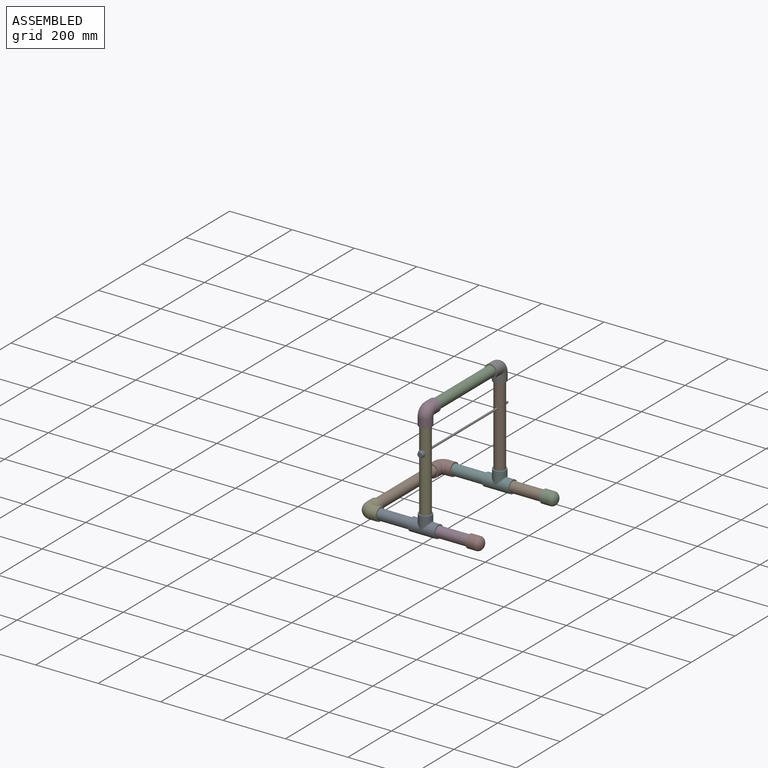
[diagram: assembled view]
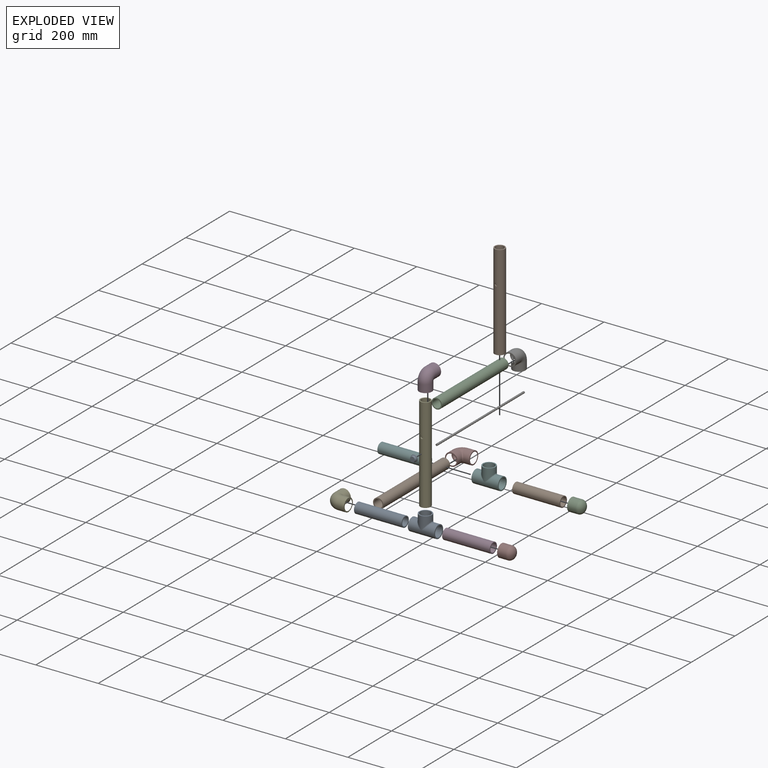
[diagram: exploded view]
GUIDED TOUR — MATED ASSEMBLY WITH SUBASSEMBLIES (Onshape document ecc70650d9e2fe0dbf41c61e, AutoMate assembly ecc70650d9e2fe0dbf41c61e_c4054f734761b2e7a3944f0c_7b533896100cbe7989020245_default)

This assembly has 19 component occurrences arranged in 18 top-level units: 17 individual components plus 1 subassembly (S0). The tour has two levels: first the top level, where each subassembly is treated as one rigid unit; then each subassembly is toured internally in its own section (nesting deeper than one subassembly level is flattened into its subassembly's section).

Components are labeled P0..P18 across the whole record; subassembly units are labeled S0..S0. A mate is a constraint between two units; its type names the relative motion it leaves free:
  FASTENED — locks the two components together rigidly (no relative motion),
  SLIDER — leaves translation along the listed axis free.
Axis/direction vectors are unit vectors and 'through' points are millimeter coordinates, both in the assembly's world frame.

TOP-LEVEL MATES (between units; each subassembly's internal mates are listed in its own section)
  1. FASTENED "Fastened 3": P17 <-> P0, direction (-1.000, 0.000, 0.000) through (169.86, -169.86, 0.00) mm
  2. FASTENED "Fastened 2": P4 <-> P17, direction (1.000, 0.000, 0.000) through (17.46, -169.86, 0.00) mm
  3. FASTENED "Fastened 1": P4 <-> P9, direction (0.000, 1.000, 0.000) through (0.00, -152.40, 0.00) mm
  4. FASTENED "Fastened 14": P18 <-> P13, direction (0.000, 0.000, -1.000) through (187.34, 169.86, 17.48) mm
  5. FASTENED "Fastened 9": P13 <-> P1, direction (1.000, 0.000, 0.000) through (204.81, 169.86, 0.00) mm
  6. FASTENED "Fastened 4": P3 <-> P0, direction (-1.000, 0.000, 0.000) through (204.81, -169.86, 0.00) mm
  7. FASTENED "Fastened 7": P15 <-> P5, direction (1.000, 0.000, 0.000) through (17.46, 169.86, 0.00) mm
  8. SLIDER "Slider 1": P6 <-> P12, axis (0.000, 1.000, 0.000) through (187.34, 5.86, 220.68) mm
  9. FASTENED "Fastened 6": P15 <-> P9, direction (0.000, -1.000, 0.000) through (0.00, 152.40, 0.00) mm
  10. FASTENED "Fastened 5": P3 <-> P7, direction (1.000, 0.000, 0.000) through (357.21, -169.86, 0.00) mm
  11. FASTENED "Fastened 16": P14 <-> P18, direction (0.000, 0.000, 1.000) through (187.34, 169.86, 322.28) mm
  12. FASTENED "Fastened 11": P12 <-> P0, direction (0.000, 0.000, 1.000) through (187.34, -169.86, 17.48) mm
  13. FASTENED "Fastened 15": P2 <-> P11, direction (0.000, 1.000, 0.000) through (187.34, -152.40, 339.74) mm
  14. FASTENED "Fastened 10": P1 <-> P10, direction (1.000, 0.000, 0.000) through (357.21, 169.86, 0.00) mm
  15. FASTENED "Fastened 17": S0 <-> P6, direction (0.000, 1.000, 0.000) through (187.34, -194.17, 220.68) mm
  16. FASTENED "Fastened 8": P13 <-> P5, direction (-1.000, 0.000, 0.000) through (169.86, 169.86, 0.00) mm
  17. FASTENED "Fastened 13": P14 <-> P2, direction (0.000, -1.000, 0.000) through (187.34, 152.40, 339.74) mm
  18. FASTENED "Fastened 12": P11 <-> P12, direction (0.000, 0.000, -1.000) through (187.34, -169.86, 322.28) mm

TOP-LEVEL ASSEMBLY ORDER
  1. P0 — the base component [order heuristic]
  2. P13 — core [order heuristic]
  3. P1 — core [order heuristic]
  4. P17 — core [order heuristic]
  5. P5 — core [order heuristic]
  6. P9 — core [order heuristic]
  7. P3 — core [order heuristic]
  8. P7 — core [order heuristic]
  9. P10 — core [order heuristic]
  10. P4 — core [order heuristic]
  11. P15 — core [order heuristic]
  12. P6 [order verified]
  13. S0 [order verified]
  14. P14 [order verified]
  15. P11 [order verified]
  16. P2 [order verified]
  17. P18 [order verified]
  18. P12 [order verified]
(S0 verified with a relaxed clearance tolerance: the source model stores slight part interference there.)
Order-tag legend:
  [order verified] — this step's position reverses a verified removal order: the component was checked to insert without passing through the ones already placed.
  [order heuristic] — the first 11 components form the assembly's core: parts whose collision-free extraction could not be verified, listed in mate-graph order.

Of the 19 component occurrences, 9 carry the full construction recipe — the FeatureScript program that regenerates the part's solid from scratch; the rest are supplied as boundary geometry only. Each toured unit is shown spotlighted twice — assembled, then exploded with a leader line back to its socket (green = recipe-attached component, orange = geometry-only, blue = subassembly unit; the rest desaturated gray).
NOTE — this tour is split across 2 documents so each fits a 32k-token context. This is document 1: the component sections continue in the remaining 1 document, each repeating the header above.
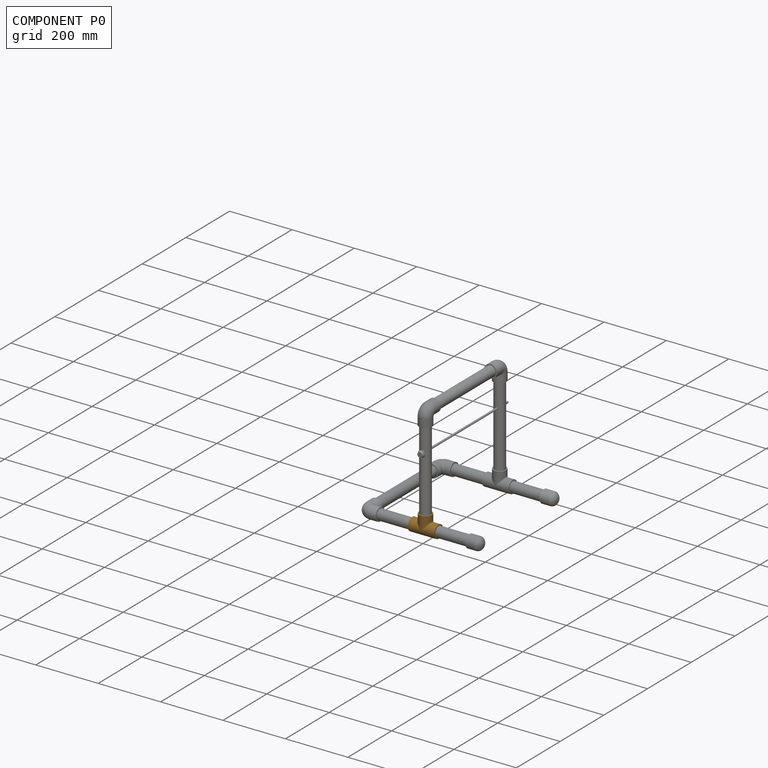
[diagram: component P0 — assembled]
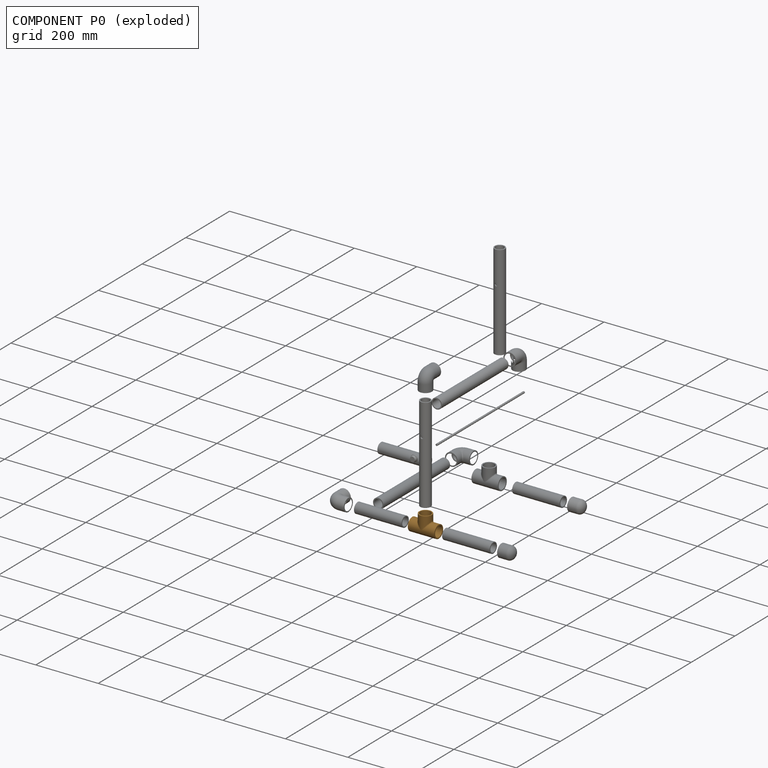
[diagram: component P0 — exploded]
COMPONENT P0 — geometry summary (no construction recipe available for this part):
  bounding box: 85.0 x 62.8 x 40.7 mm
  B-rep topology: 1 solid, 15 faces, 62 edges
  volume: 54324 mm^3 (25% of its bounding box)
Held by: FASTENED mate "Fastened 3" to P17; FASTENED mate "Fastened 4" to P3; FASTENED mate "Fastened 11" to P12.
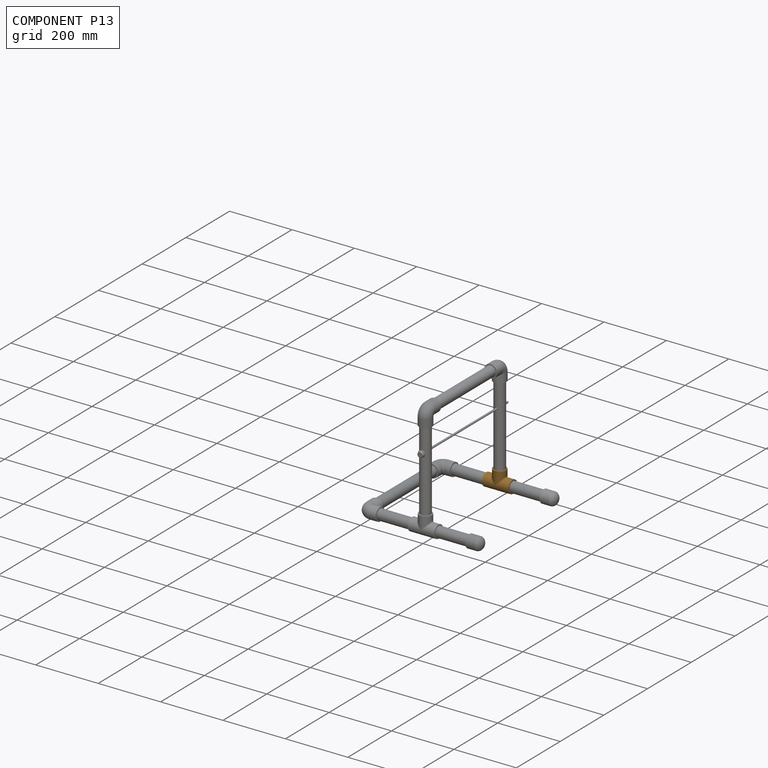
[diagram: component P13 — assembled]
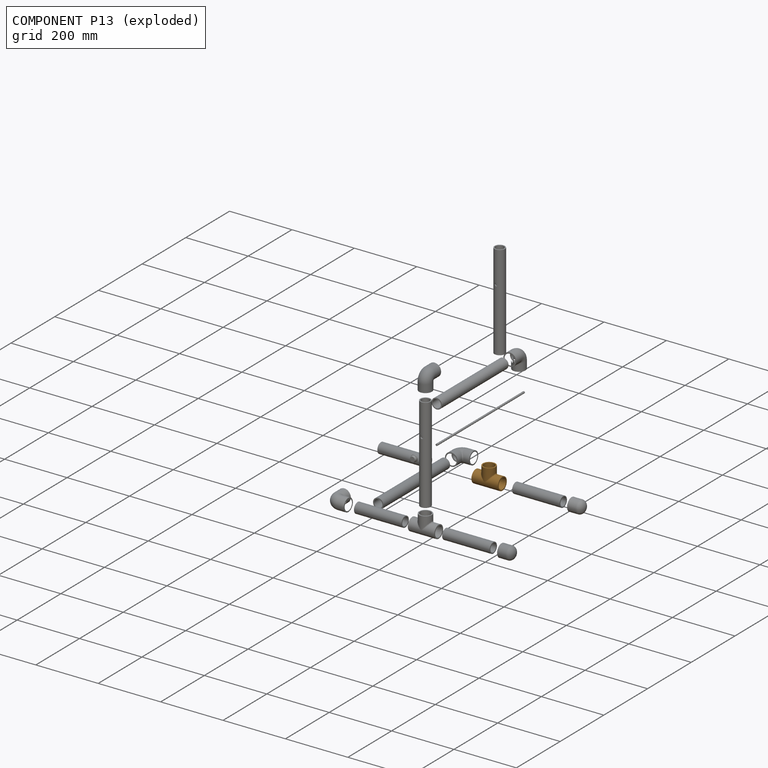
[diagram: component P13 — exploded]
COMPONENT P13 — geometry summary (no construction recipe available for this part):
  bounding box: 85.0 x 62.8 x 40.7 mm
  B-rep topology: 1 solid, 15 faces, 62 edges
  volume: 54324 mm^3 (25% of its bounding box)
Held by: FASTENED mate "Fastened 14" to P18; FASTENED mate "Fastened 9" to P1; FASTENED mate "Fastened 8" to P5.
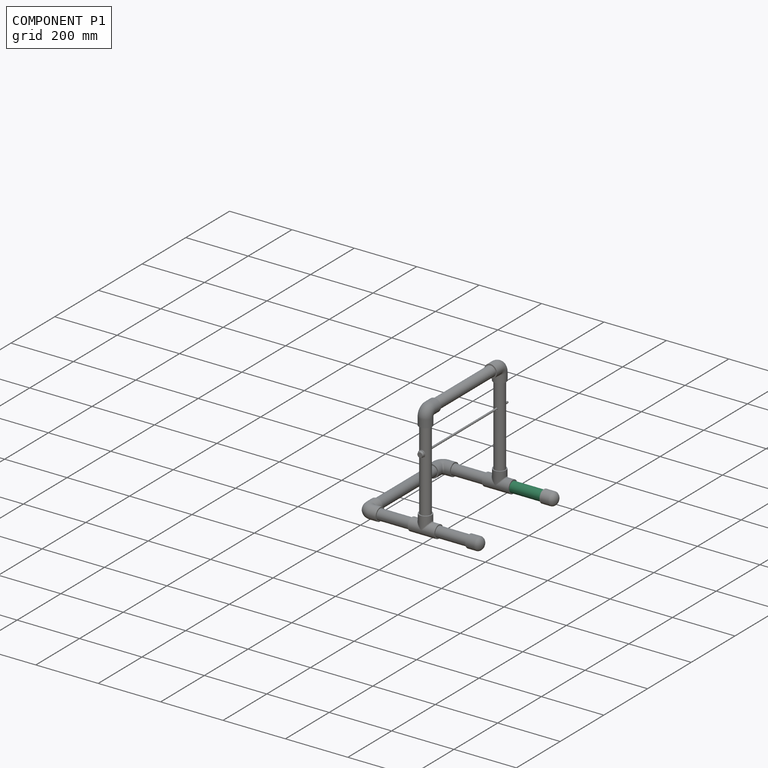
[diagram: component P1 — assembled]
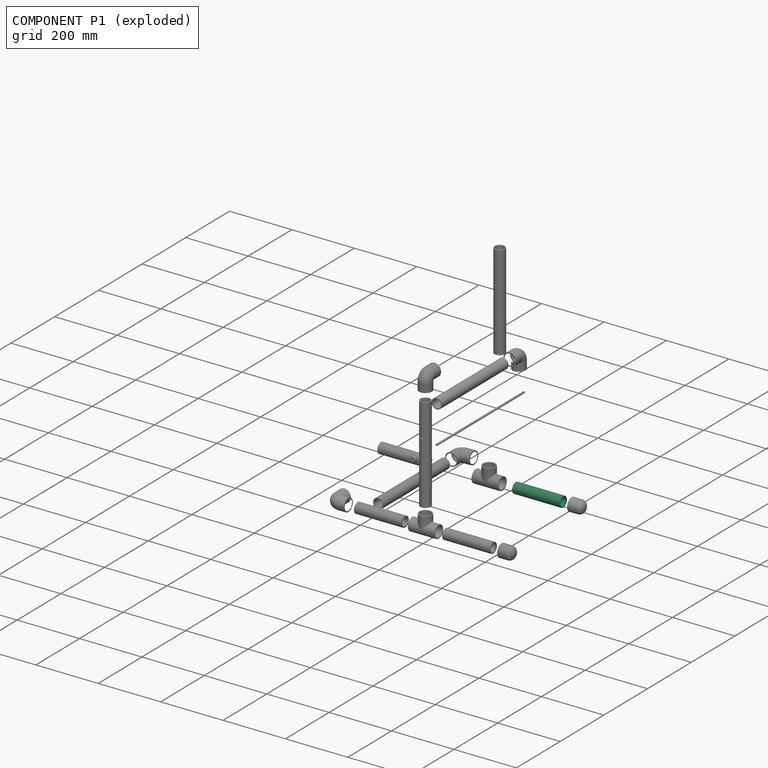
[diagram: component P1 — exploded]
COMPONENT P1 — recipe-attached (CADFS 00862328, mesh-verified: the recipe's output STEP matches this component's geometry to below the mesh-comparison resolution (tessellation chordal tolerance ~0.239 mm)).
Held by: FASTENED mate "Fastened 9" to P13; FASTENED mate "Fastened 10" to P10.
Construction recipe (FeatureScript — the CAD program that rebuilds this solid; sketch coordinates are in the units given by the * unit suffixes, e.g. mm):

FeatureScript 1511;
import(path : "onshape/std/geometry.fs", version : "1511.0");
import(path : "onshape/std/common.fs", version : "1511.0");
const mm = millimeter;
const VERTEX = EntityType.VERTEX;
const EDGE = EntityType.EDGE;
const FACE = EntityType.FACE;
const BODY = EntityType.BODY;
function v(x, y){return vector(x, y);}
function OD(order){return orderDisambiguation(order);}
function OSD(set){return originalSetDisambiguation(set);}
function TD(topology){return topologyDisambiguation(topology);}
function TDD(query){return trueDependencyDisambiguation(query);}
function sQuery(a, b, c) {return sketchEntityQuery(a, b, c);}

annotation { "Feature Type Name" : "Feature", "Feature Type Description" : "" }
export const myFeature = defineFeature(function(context is Context, id is Id, definition is map)
    precondition{}
    {
        {
            var Q0;
            Q0=qCreatedBy(makeId("Front.planeOp"),FACE);
            var sketch = newSketch(context, id + "F0", { "sketchPlane" : qUnion([Q0])});
            skCircle(sketch, "E0", {"center": v(0, 0) * mm, "radius": 16.7 * mm});
            skCircle(sketch, "E1", {"center": v(0, 0) * mm, "radius": 13.32 * mm});
            skSolve(sketch);
        }
        {
            var Q0;
            Q0=makeQuery(id+"F0.imprint","IMPRINT",FACE,{"disambiguationData":[TD([[makeQuery(id+"F0.imprint","IMPRINT",EDGE,{"derivedFrom":sQuery(id+"F0.wireOp",EDGE,"E0")}),1.0]])]});
            extrude(context, id + "F1", {"entities" : qUnion([Q0]), "endBound" : BoundingType.SYMMETRIC, "depth" : 152.4 * mm, "offsetDistance" : 25.4 * mm});
        }
    });
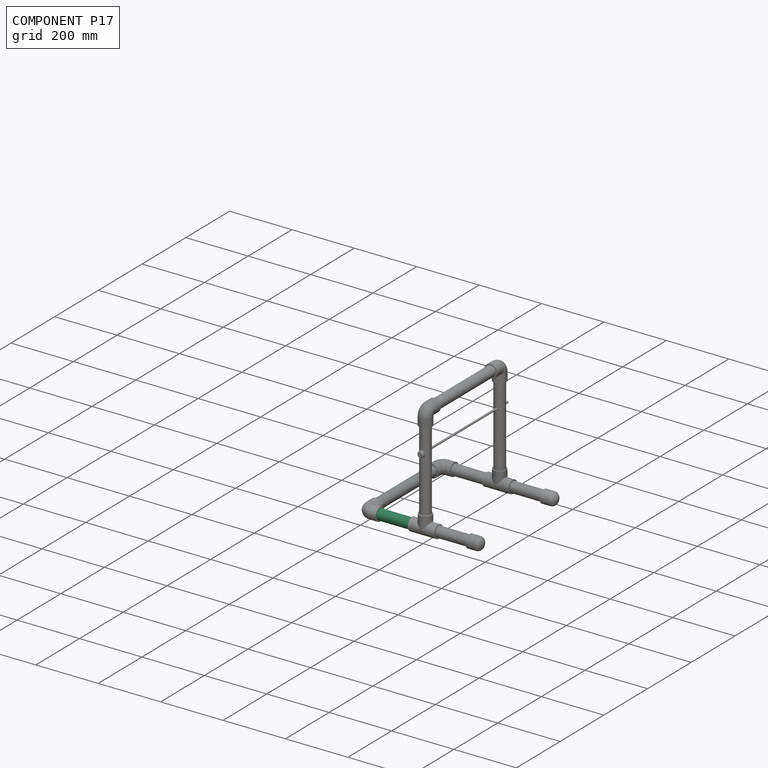
[diagram: component P17 — assembled]
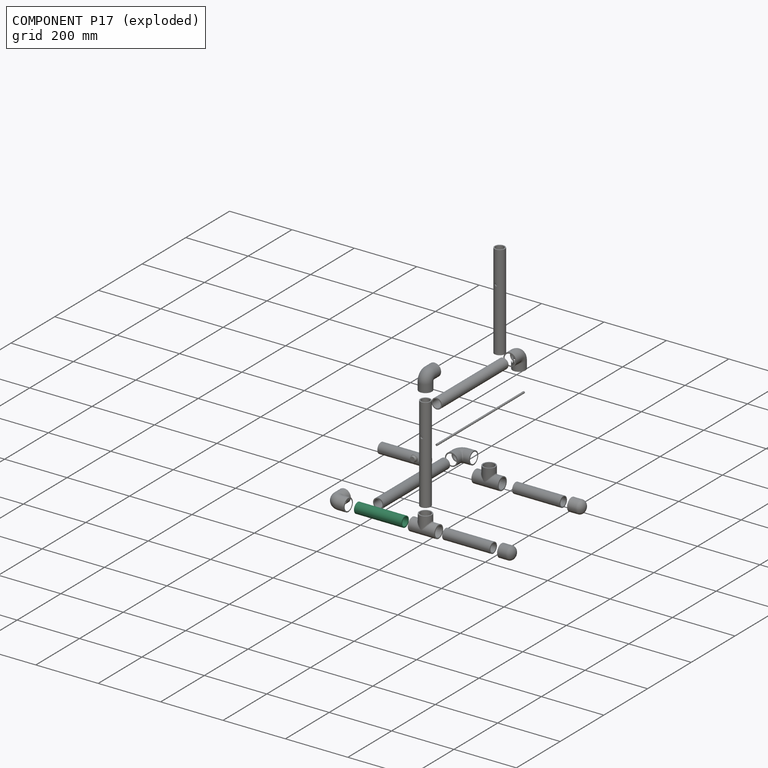
[diagram: component P17 — exploded]
COMPONENT P17 — same part as P1 (CADFS 00862328); its construction recipe is shown at P1.
Held by: FASTENED mate "Fastened 3" to P0; FASTENED mate "Fastened 2" to P4.
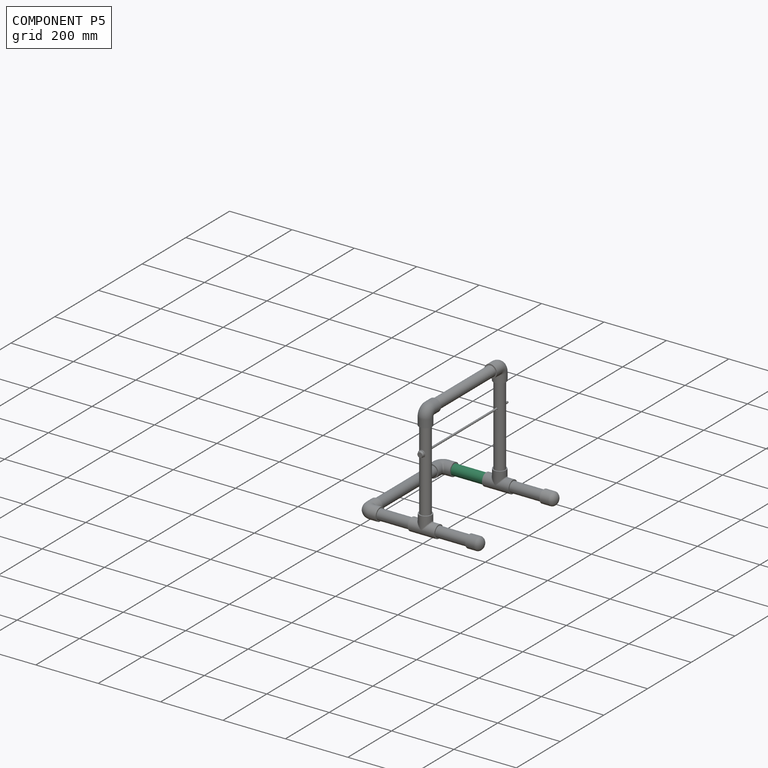
[diagram: component P5 — assembled]
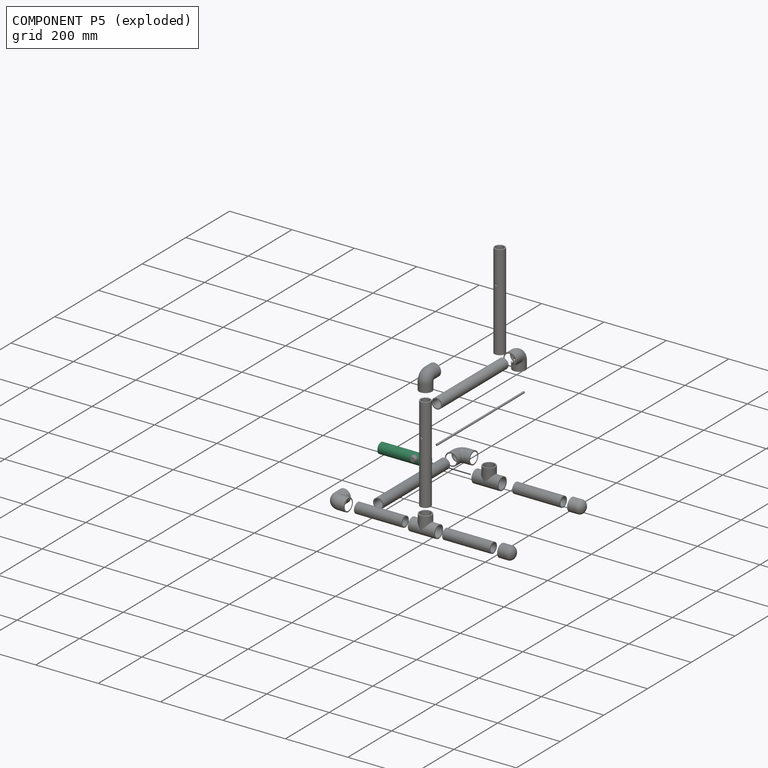
[diagram: component P5 — exploded]
COMPONENT P5 — same part as P1 (CADFS 00862328); its construction recipe is shown at P1.
Held by: FASTENED mate "Fastened 7" to P15; FASTENED mate "Fastened 8" to P13.
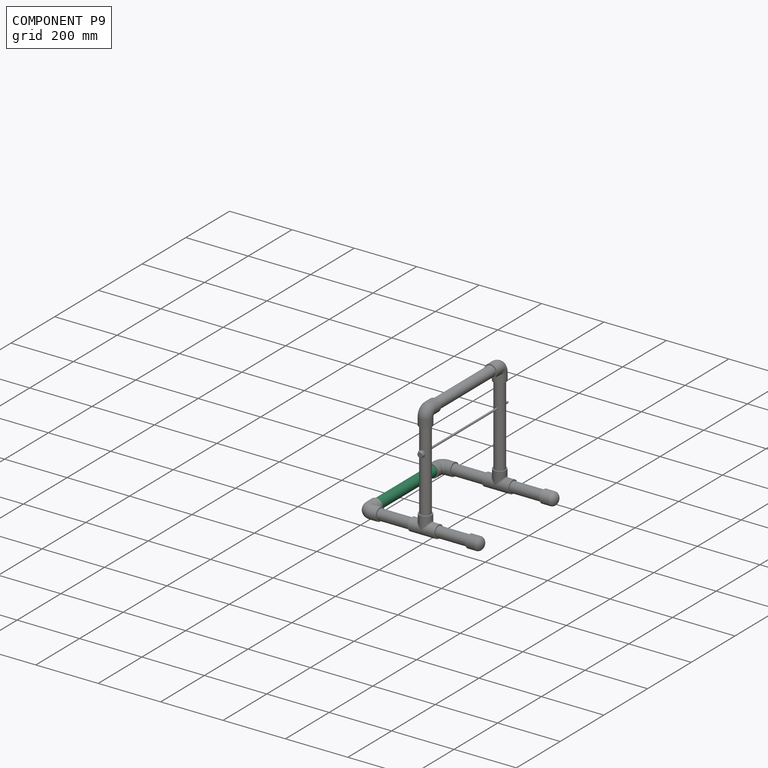
[diagram: component P9 — assembled]
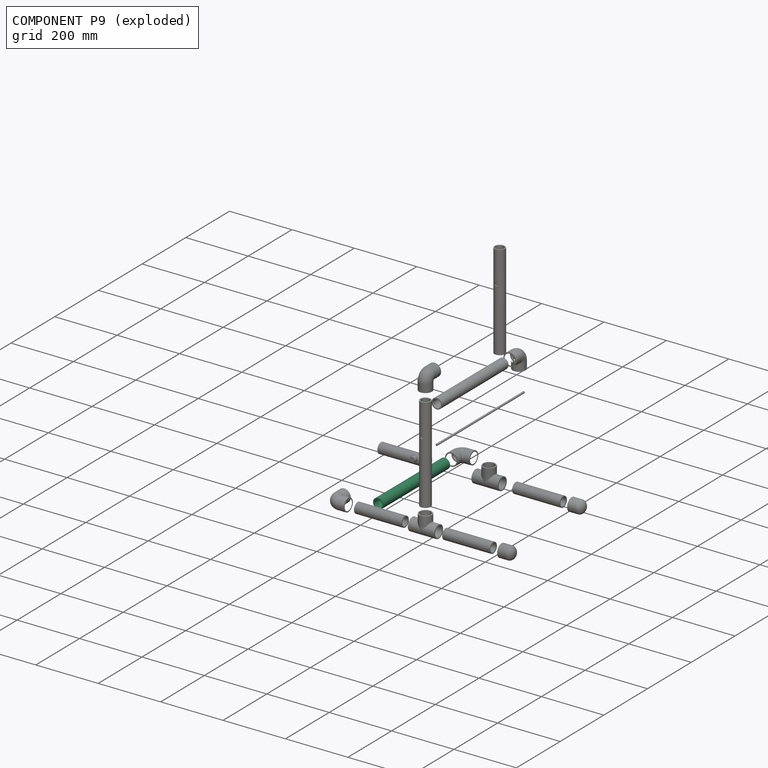
[diagram: component P9 — exploded]
COMPONENT P9 — same part as P2 (CADFS 00862326); its construction recipe is shown at P2.
Held by: FASTENED mate "Fastened 1" to P4; FASTENED mate "Fastened 6" to P15.
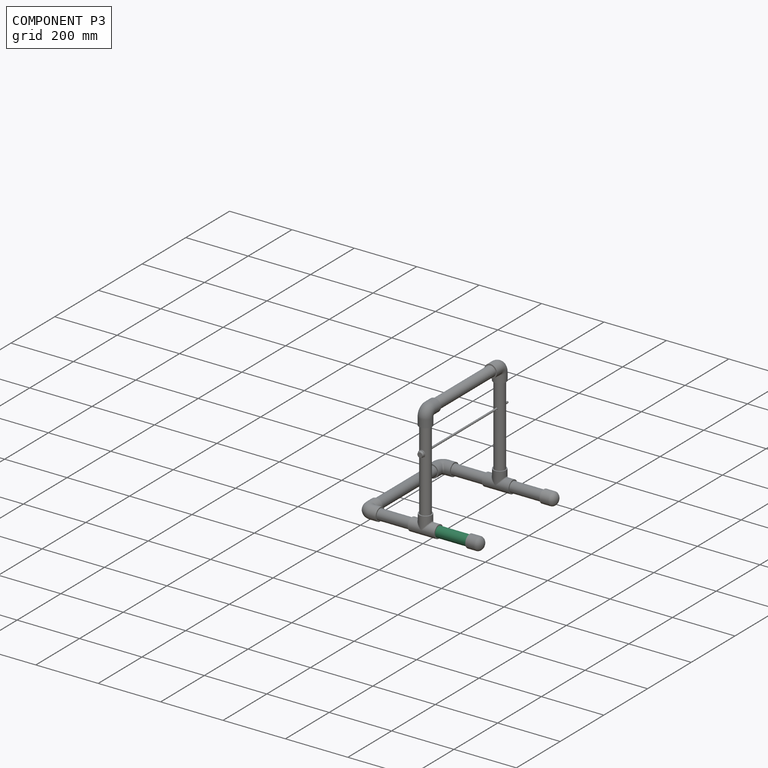
[diagram: component P3 — assembled]
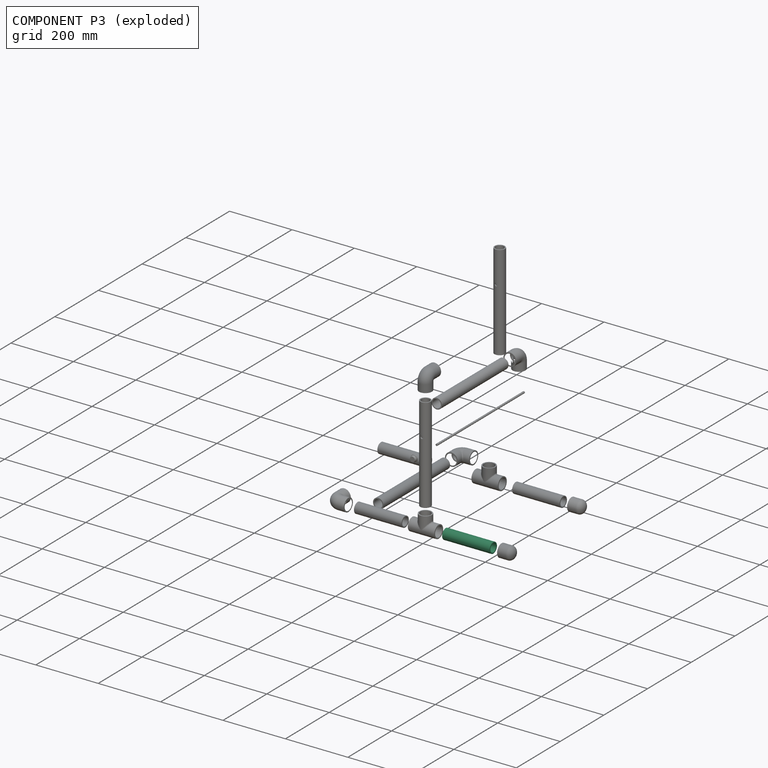
[diagram: component P3 — exploded]
COMPONENT P3 — same part as P1 (CADFS 00862328); its construction recipe is shown at P1.
Held by: FASTENED mate "Fastened 4" to P0; FASTENED mate "Fastened 5" to P7.
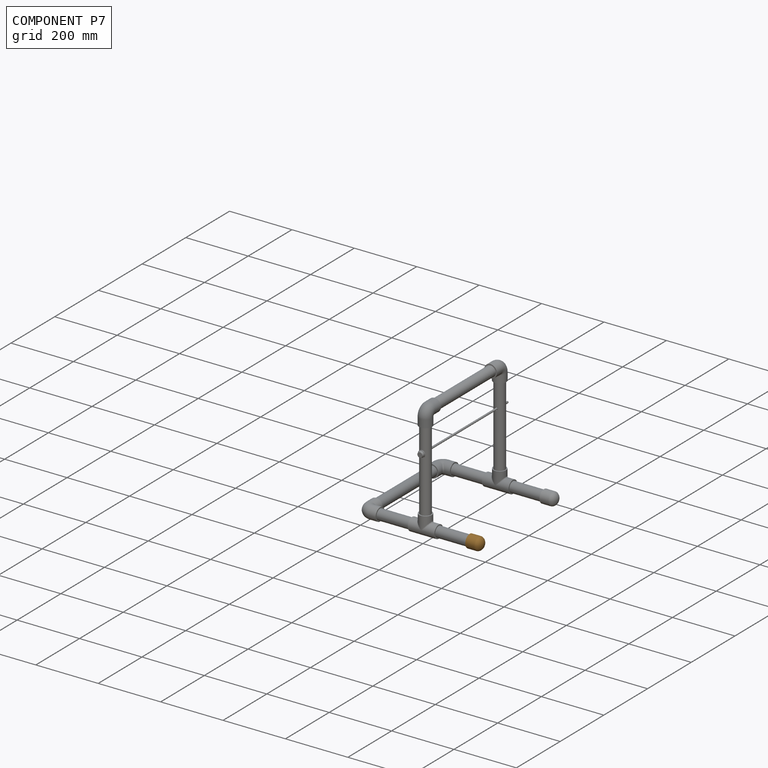
[diagram: component P7 — assembled]
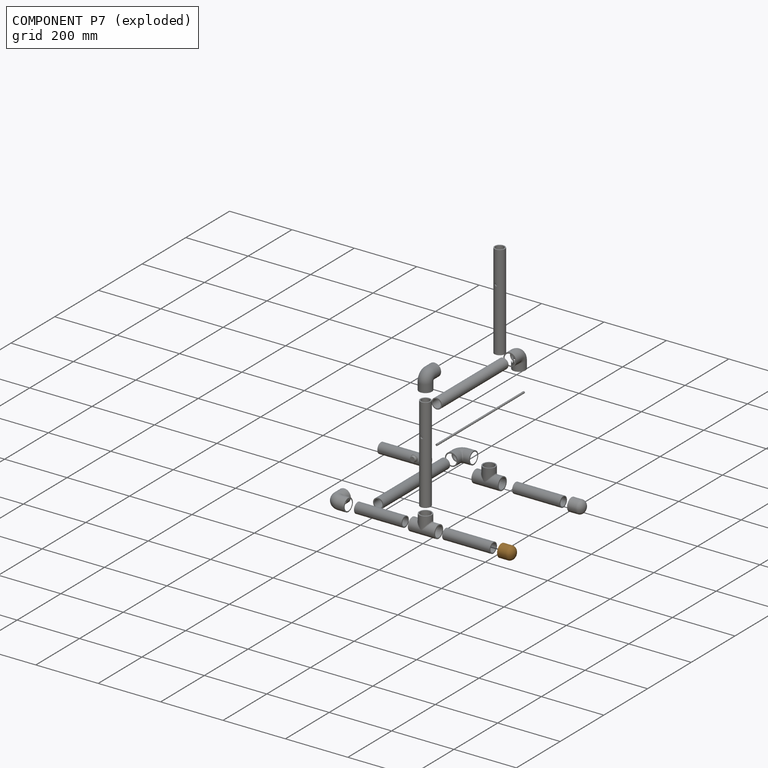
[diagram: component P7 — exploded]
COMPONENT P7 — geometry summary (no construction recipe available for this part):
  bounding box: 44.0 x 41.2 x 41.2 mm
  B-rep topology: 1 solid, 5 faces, 20 edges
  volume: 19866 mm^3 (27% of its bounding box)
  symmetry: revolution-symmetric about the x axis through its bounding-box center; mirror-symmetric across its y mid-plane, z mid-plane
Held by: FASTENED mate "Fastened 5" to P3.
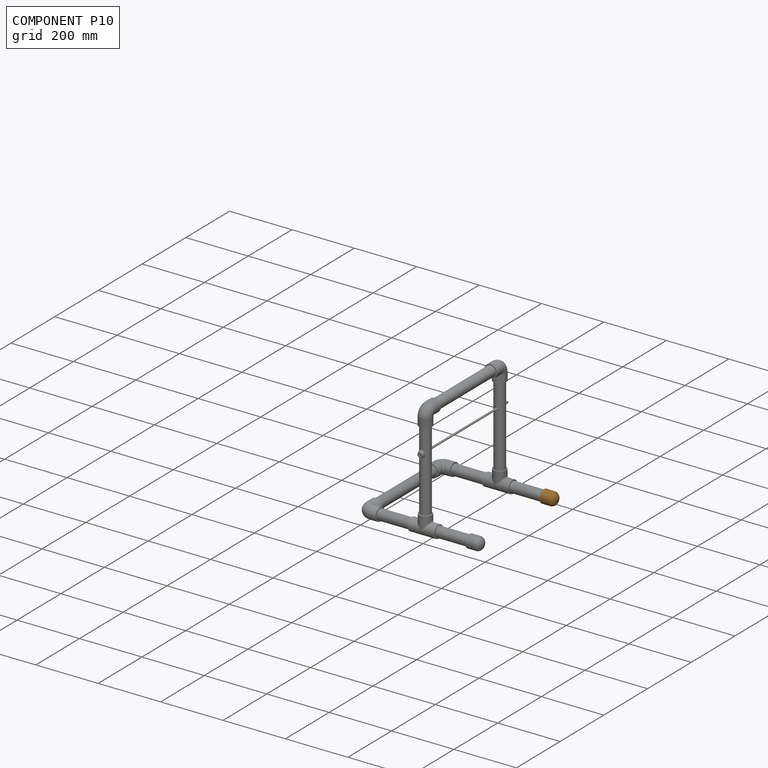
[diagram: component P10 — assembled]
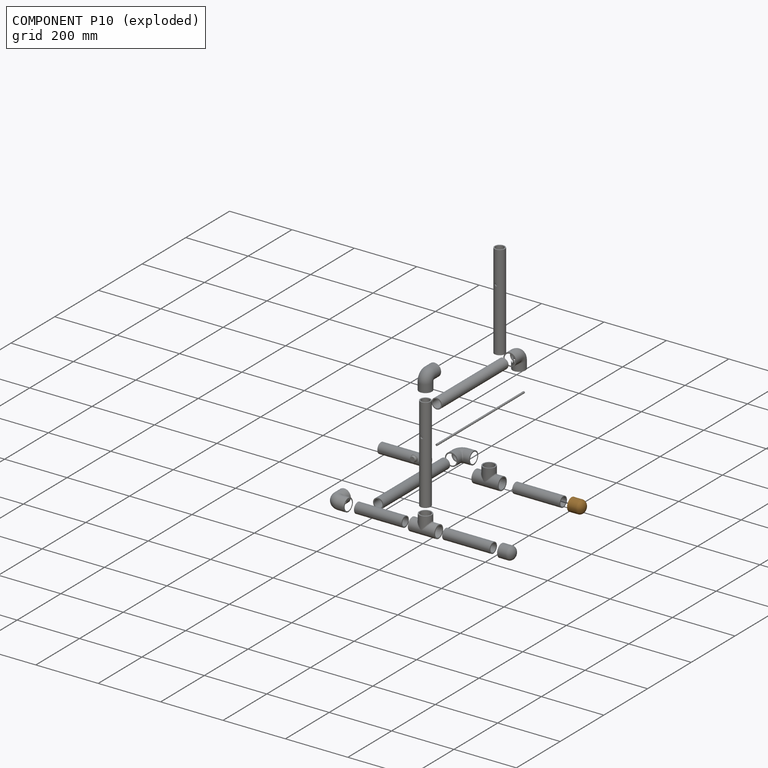
[diagram: component P10 — exploded]
COMPONENT P10 — geometry summary (no construction recipe available for this part):
  bounding box: 44.0 x 41.2 x 41.2 mm
  B-rep topology: 1 solid, 5 faces, 20 edges
  volume: 19866 mm^3 (27% of its bounding box)
  symmetry: revolution-symmetric about the x axis through its bounding-box center; mirror-symmetric across its y mid-plane, z mid-plane
Held by: FASTENED mate "Fastened 10" to P1.
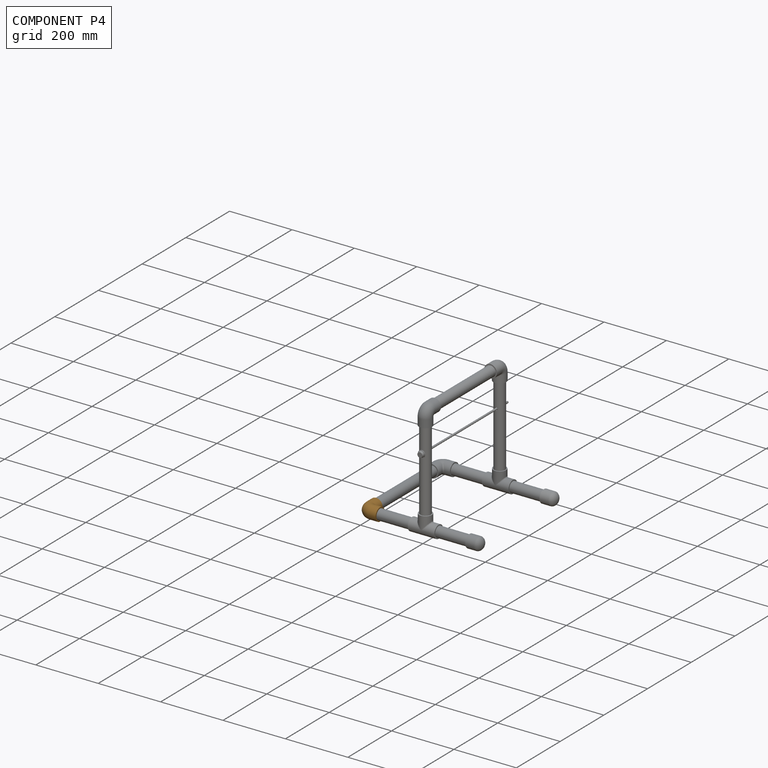
[diagram: component P4 — assembled]
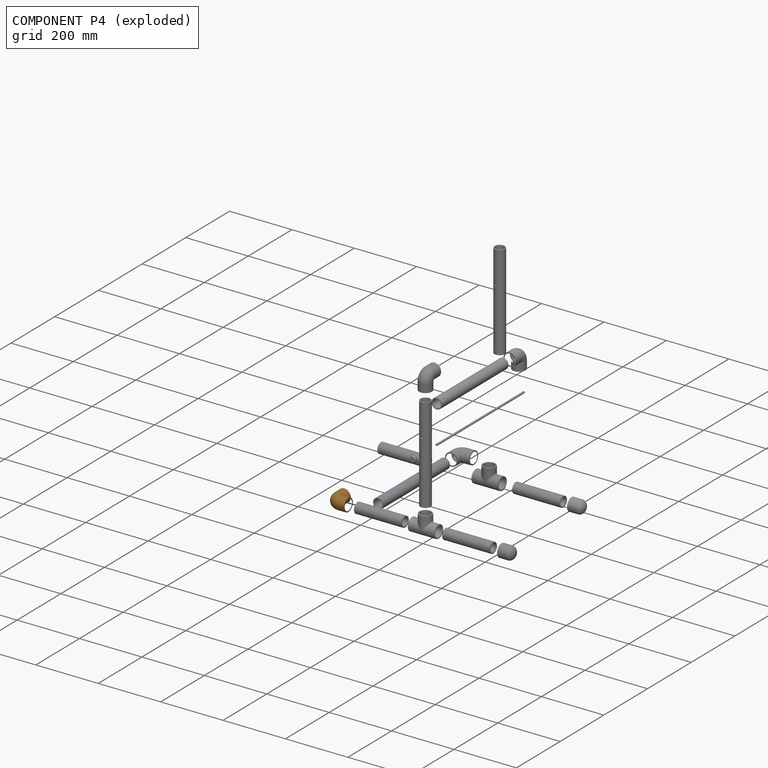
[diagram: component P4 — exploded]
COMPONENT P4 — geometry summary (no construction recipe available for this part):
  bounding box: 62.7 x 62.7 x 41.3 mm
  B-rep topology: 1 solid, 11 faces, 44 edges
  volume: 101332 mm^3 (62% of its bounding box)
  symmetry: mirror-symmetric across its y mid-plane
Held by: FASTENED mate "Fastened 2" to P17; FASTENED mate "Fastened 1" to P9.
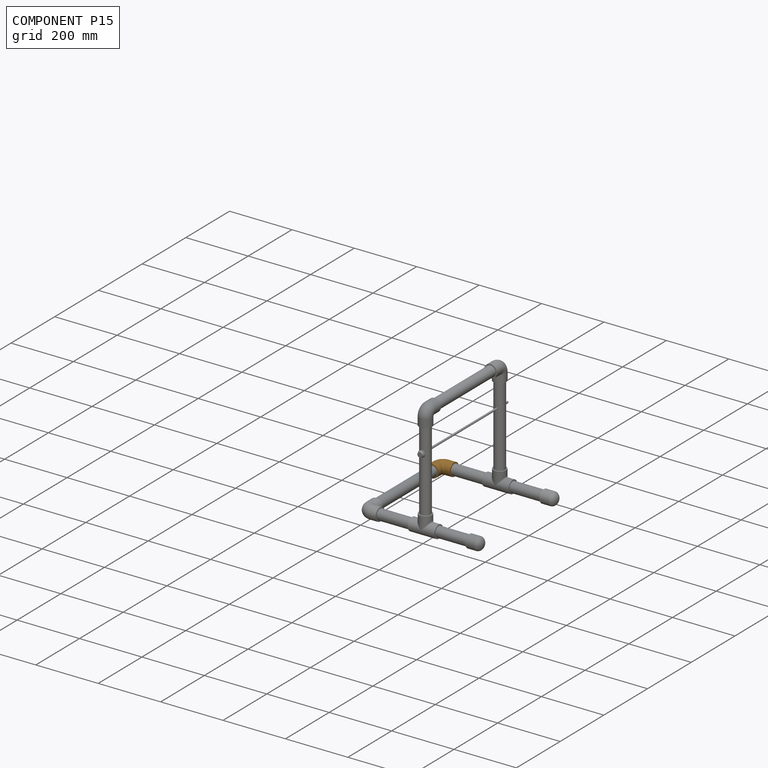
[diagram: component P15 — assembled]
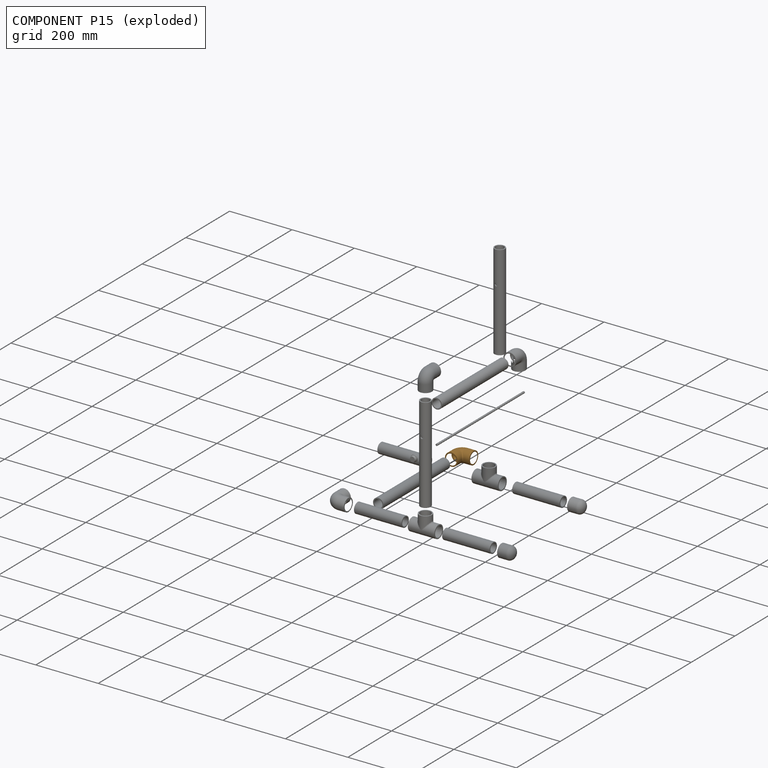
[diagram: component P15 — exploded]
COMPONENT P15 — geometry summary (no construction recipe available for this part):
  bounding box: 62.7 x 62.7 x 41.3 mm
  B-rep topology: 1 solid, 11 faces, 44 edges
  volume: 101332 mm^3 (62% of its bounding box)
  symmetry: mirror-symmetric across its y mid-plane
Held by: FASTENED mate "Fastened 7" to P5; FASTENED mate "Fastened 6" to P9.
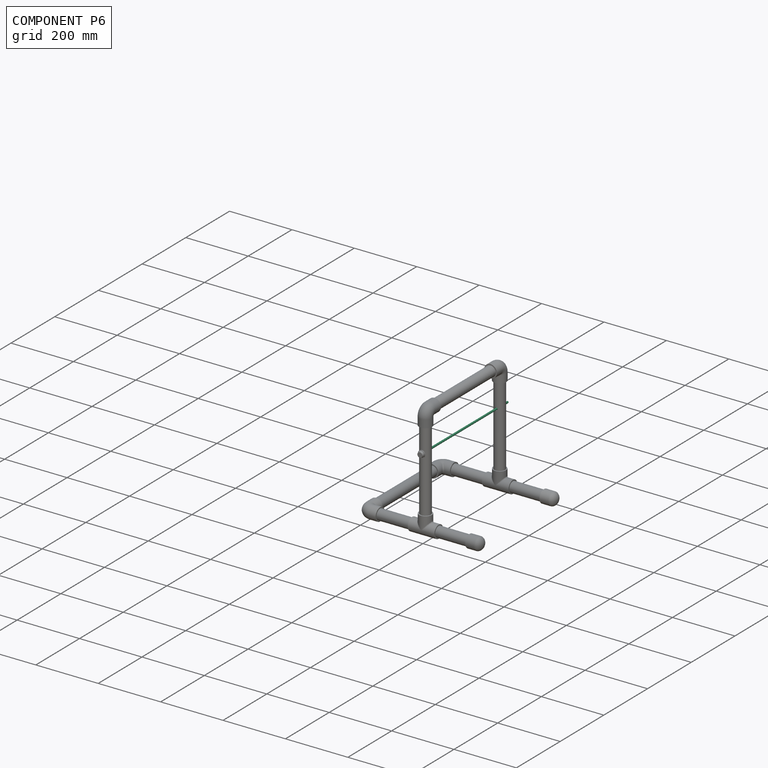
[diagram: component P6 — assembled]
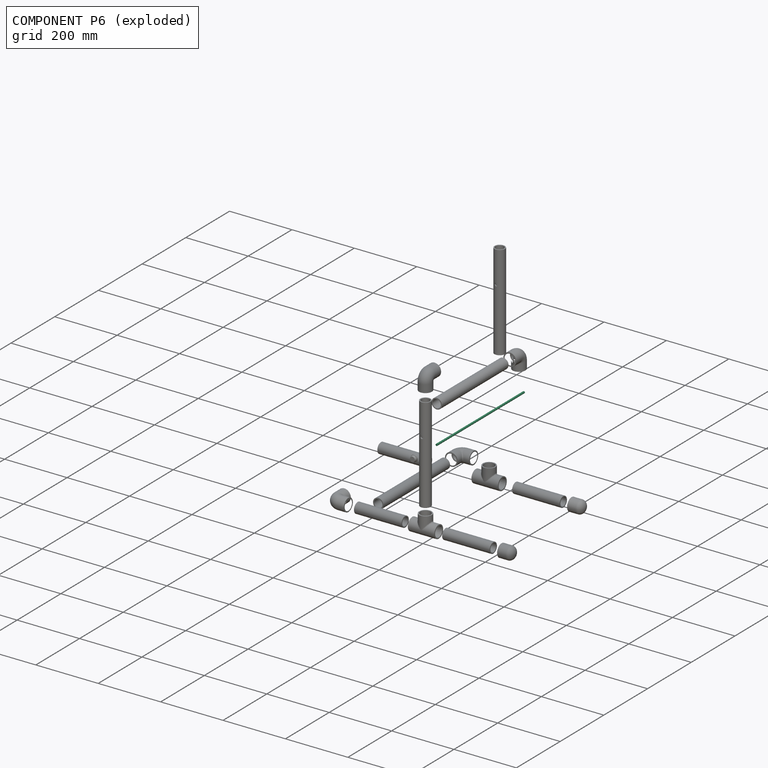
[diagram: component P6 — exploded]
COMPONENT P6 — recipe-attached (CADFS 00862329, mesh-verified: the recipe's output STEP matches this component's geometry to below the mesh-comparison resolution (tessellation chordal tolerance ~0.6 mm)).
Held by: SLIDER mate "Slider 1" to P12; FASTENED mate "Fastened 17" to P8.
Construction recipe (FeatureScript — the CAD program that rebuilds this solid; sketch coordinates are in the units given by the * unit suffixes, e.g. mm):

FeatureScript 1511;
import(path : "onshape/std/geometry.fs", version : "1511.0");
import(path : "onshape/std/common.fs", version : "1511.0");
const mm = millimeter;
const VERTEX = EntityType.VERTEX;
const EDGE = EntityType.EDGE;
const FACE = EntityType.FACE;
const BODY = EntityType.BODY;
function v(x, y){return vector(x, y);}
function OD(order){return orderDisambiguation(order);}
function OSD(set){return originalSetDisambiguation(set);}
function TD(topology){return topologyDisambiguation(topology);}
function TDD(query){return trueDependencyDisambiguation(query);}
function sQuery(a, b, c) {return sketchEntityQuery(a, b, c);}

annotation { "Feature Type Name" : "Feature", "Feature Type Description" : "" }
export const myFeature = defineFeature(function(context is Context, id is Id, definition is map)
    precondition{}
    {
        {
            var Q0;
            Q0=qCreatedBy(makeId("Right.planeOp"),FACE);
            var sketch = newSketch(context, id + "F0", { "sketchPlane" : qUnion([Q0])});
            skCircle(sketch, "E0", {"center": v(0, 0) * mm, "radius": 3.18 * mm});
            skSolve(sketch);
        }
        {
            var Q0;
            Q0 = qSketchRegion(id + "F0", true);
            extrude(context, id + "F1", {"entities" : qUnion([Q0]), "endBound" : BoundingType.SYMMETRIC, "depth" : 400.05 * mm, "offsetDistance" : 25.4 * mm});
        }
        {
            var Q0;
            Q0=qCreatedBy(makeId("Top.planeOp"),FACE);
            var sketch = newSketch(context, id + "F2", { "sketchPlane" : qUnion([Q0])});
            skCircle(sketch, "E1", {"center": v(-195.26, 0) * mm, "radius": 1.39 * mm});
            skSolve(sketch);
        }
        {
            var Q0;
            Q0 = qSketchRegion(id + "F2", true);
            extrude(context, id + "F3", {"entities" : qUnion([Q0]), "operationType" : NewBodyOperationType.REMOVE, "endBound" : BoundingType.UP_TO_NEXT, "oppositeDirection" : true, "depth" : 25.4 * mm, "offsetDistance" : 25.4 * mm, "hasSecondDirection" : true, "secondDirectionBound" : SecondDirectionBoundingType.UP_TO_NEXT, "secondDirectionOppositeDirection" : false, "secondDirectionDepth" : 25.4 * mm});
        }
    });
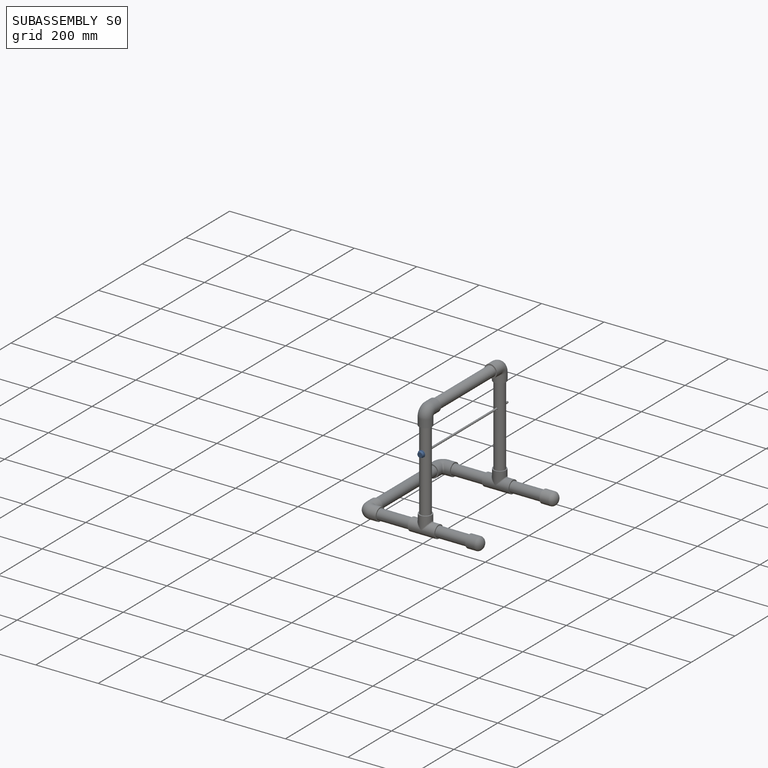
[diagram: subassembly S0 — assembled]
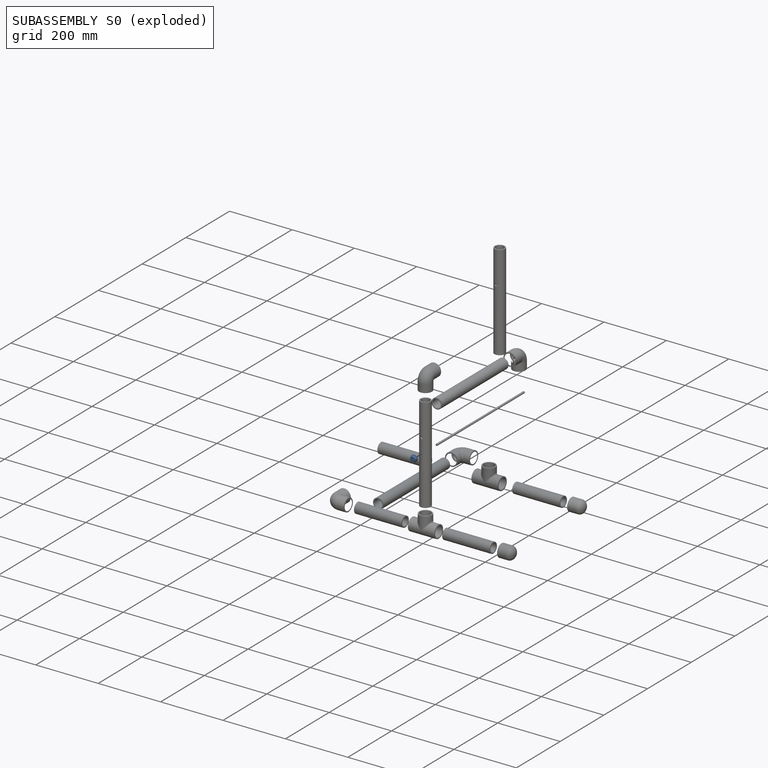
[diagram: subassembly S0 — exploded]
SUBASSEMBLY S0 — 2 components (P8, P16), of which 0 recipe-attached; toured below.
Held by: FASTENED mate "Fastened 17" to P6.
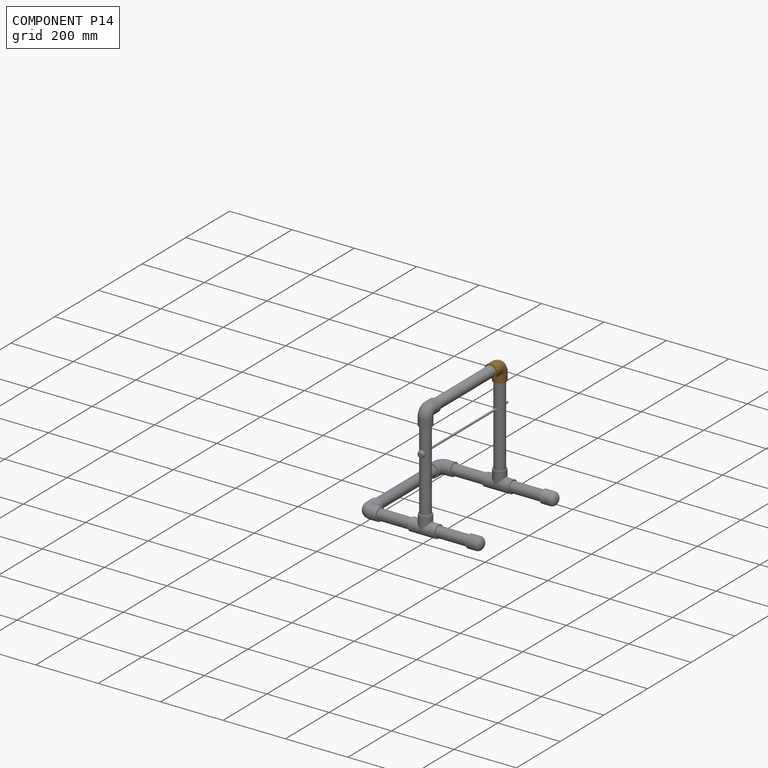
[diagram: component P14 — assembled]
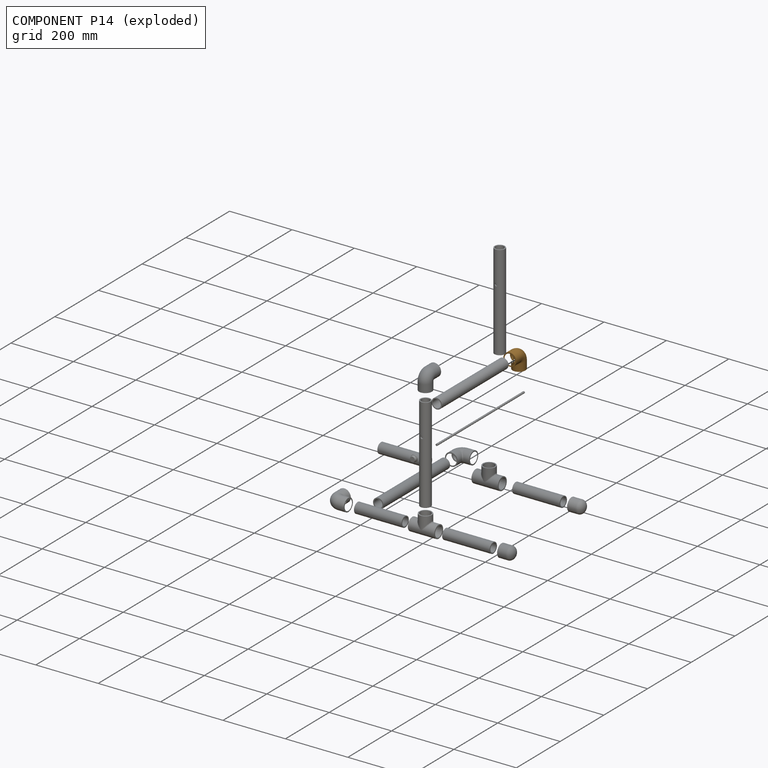
[diagram: component P14 — exploded]
COMPONENT P14 — geometry summary (no construction recipe available for this part):
  bounding box: 62.7 x 62.7 x 41.3 mm
  B-rep topology: 1 solid, 11 faces, 44 edges
  volume: 101332 mm^3 (62% of its bounding box)
  symmetry: mirror-symmetric across its y mid-plane
Held by: FASTENED mate "Fastened 16" to P18; FASTENED mate "Fastened 13" to P2.
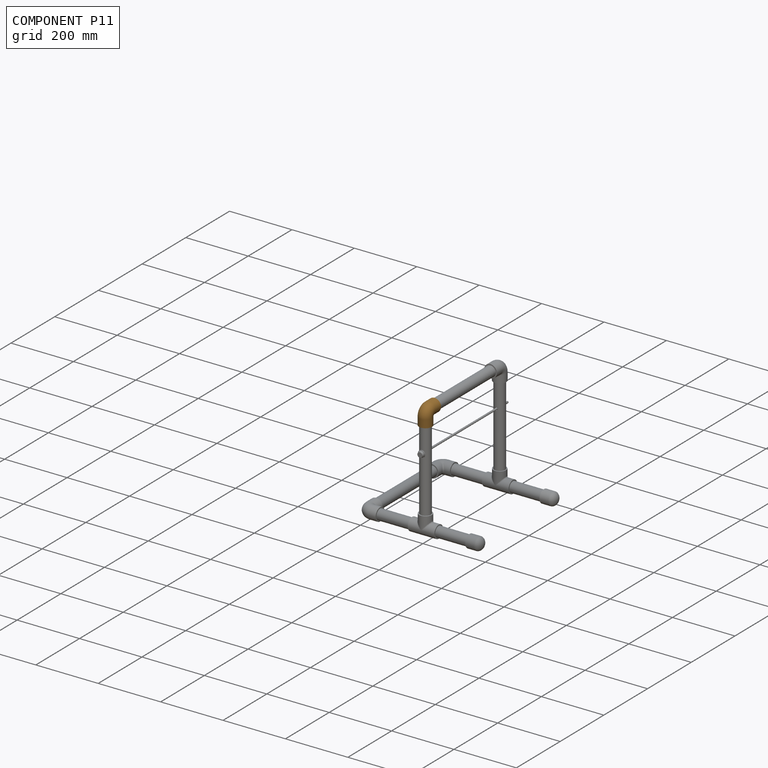
[diagram: component P11 — assembled]
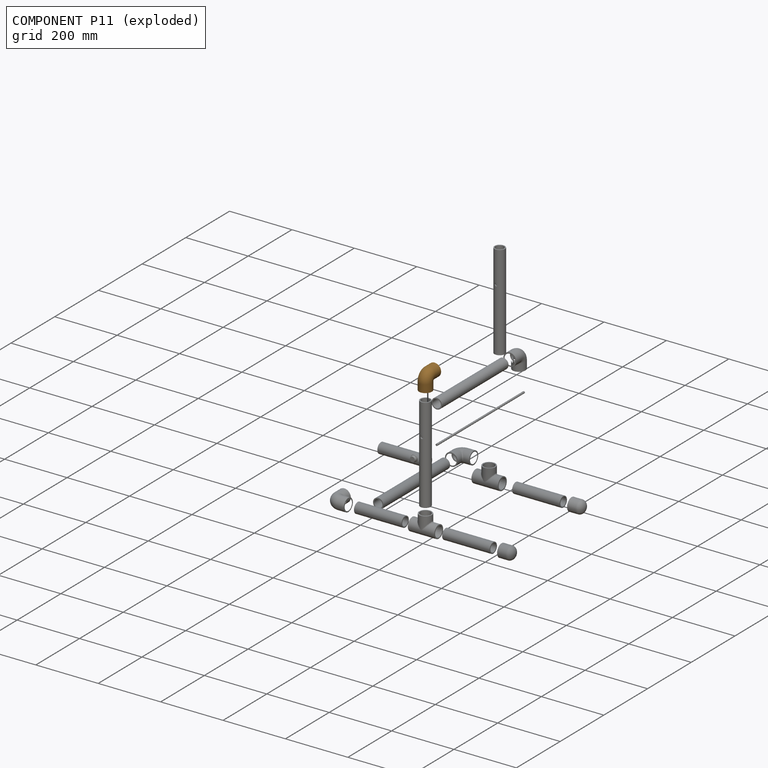
[diagram: component P11 — exploded]
COMPONENT P11 — geometry summary (no construction recipe available for this part):
  bounding box: 62.7 x 62.7 x 41.3 mm
  B-rep topology: 1 solid, 11 faces, 44 edges
  volume: 101332 mm^3 (62% of its bounding box)
  symmetry: mirror-symmetric across its y mid-plane
Held by: FASTENED mate "Fastened 15" to P2; FASTENED mate "Fastened 12" to P12.
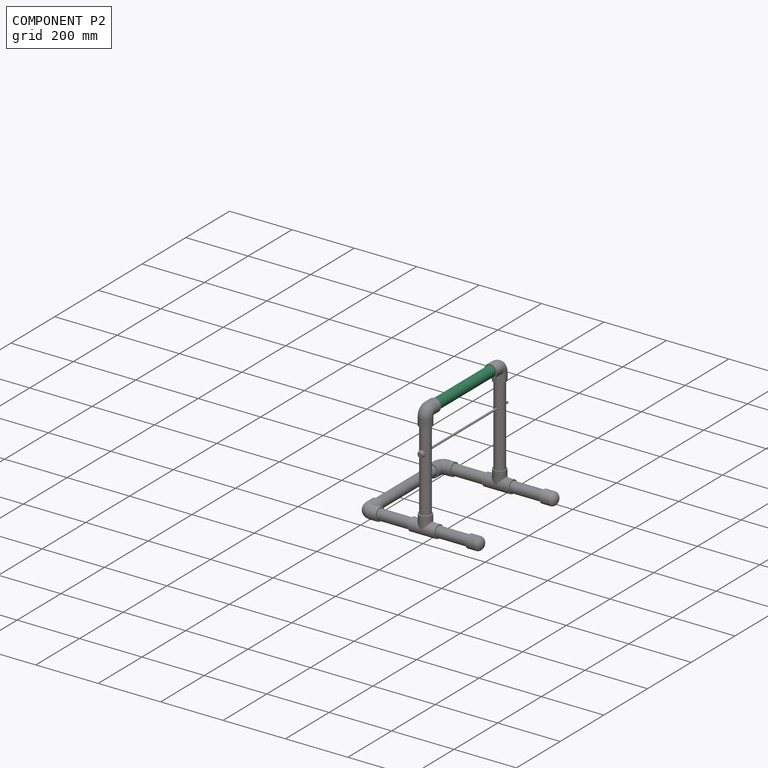
[diagram: component P2 — assembled]
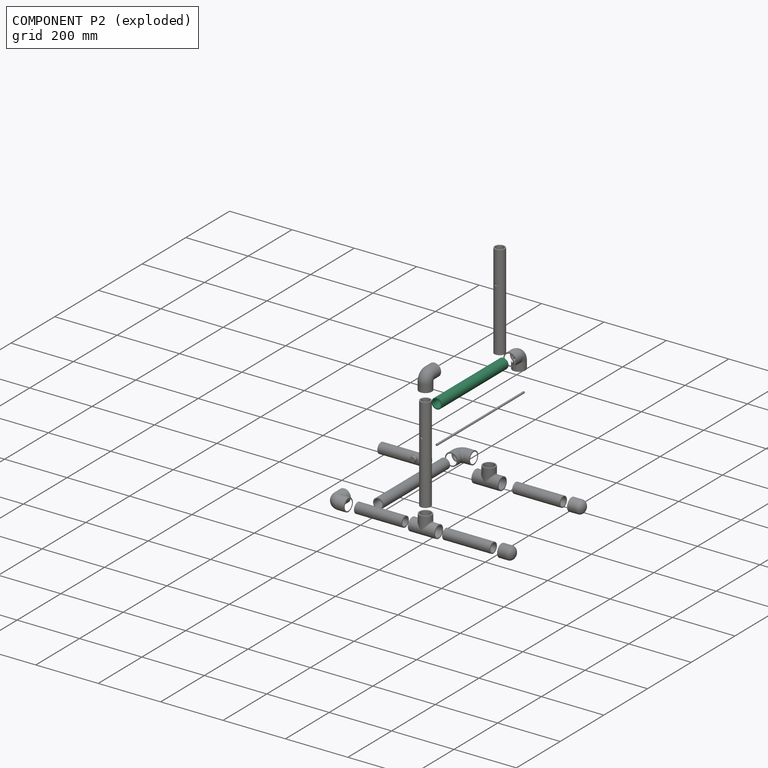
[diagram: component P2 — exploded]
COMPONENT P2 — recipe-attached (CADFS 00862326, mesh-verified: the recipe's output STEP matches this component's geometry to below the mesh-comparison resolution (tessellation chordal tolerance ~0.463 mm)).
Held by: FASTENED mate "Fastened 15" to P11; FASTENED mate "Fastened 13" to P14.
Construction recipe (FeatureScript — the CAD program that rebuilds this solid; sketch coordinates are in the units given by the * unit suffixes, e.g. mm):

FeatureScript 1511;
import(path : "onshape/std/geometry.fs", version : "1511.0");
import(path : "onshape/std/common.fs", version : "1511.0");
const mm = millimeter;
const VERTEX = EntityType.VERTEX;
const EDGE = EntityType.EDGE;
const FACE = EntityType.FACE;
const BODY = EntityType.BODY;
function v(x, y){return vector(x, y);}
function OD(order){return orderDisambiguation(order);}
function OSD(set){return originalSetDisambiguation(set);}
function TD(topology){return topologyDisambiguation(topology);}
function TDD(query){return trueDependencyDisambiguation(query);}
function sQuery(a, b, c) {return sketchEntityQuery(a, b, c);}

annotation { "Feature Type Name" : "Feature", "Feature Type Description" : "" }
export const myFeature = defineFeature(function(context is Context, id is Id, definition is map)
    precondition{}
    {
        {
            var Q0;
            Q0=qCreatedBy(makeId("Front.planeOp"),FACE);
            var sketch = newSketch(context, id + "F0", { "sketchPlane" : qUnion([Q0])});
            skCircle(sketch, "E0", {"center": v(0, 0) * mm, "radius": 16.7 * mm});
            skCircle(sketch, "E1", {"center": v(0, 0) * mm, "radius": 13.32 * mm});
            skSolve(sketch);
        }
        {
            var Q0;
            Q0=makeQuery(id+"F0.imprint","IMPRINT",FACE,{"disambiguationData":[TD([[makeQuery(id+"F0.imprint","IMPRINT",EDGE,{"derivedFrom":sQuery(id+"F0.wireOp",EDGE,"E0")}),1.0]])]});
            extrude(context, id + "F1", {"entities" : qUnion([Q0]), "endBound" : BoundingType.SYMMETRIC, "depth" : 304.8 * mm, "offsetDistance" : 25.4 * mm});
        }
        {
            var Q0;
            Q0=qCreatedBy(makeId("Right.planeOp"),FACE);
            var sketch = newSketch(context, id + "F2", { "sketchPlane" : qUnion([Q0])});
            skCircle(sketch, "E2", {"center": v(50.8, 0) * mm, "radius": 4.76 * mm});
            skSolve(sketch);
        }
        {
            var Q0;
            Q0=qCreatedBy(makeId("Right.planeOp"),FACE);
            var sketch = newSketch(context, id + "F3", { "sketchPlane" : qUnion([Q0])});
            skCircle(sketch, "E3", {"center": v(44.7, 50.9) * mm, "radius": 28.47 * mm});
            skSolve(sketch);
        }
        {
            var Q0;
            Q0 = qSketchRegion(id + "F3", true);
            extrude(context, id + "F4", {"entities" : qUnion([Q0]), "depth" : 25.4 * mm, "offsetDistance" : 25.4 * mm});
        }
        {
            var Q0;
            Q0=makeQuery(id+"F4.opExtrude","SWEPT_BODY",BODY,{"disambiguationData":[OSD([sQuery(id+"F3.wireOp",EDGE,"E3")])]});
            deleteBodies(context, id + "F5", {"entities" : qUnion([Q0])});
        }
    });
